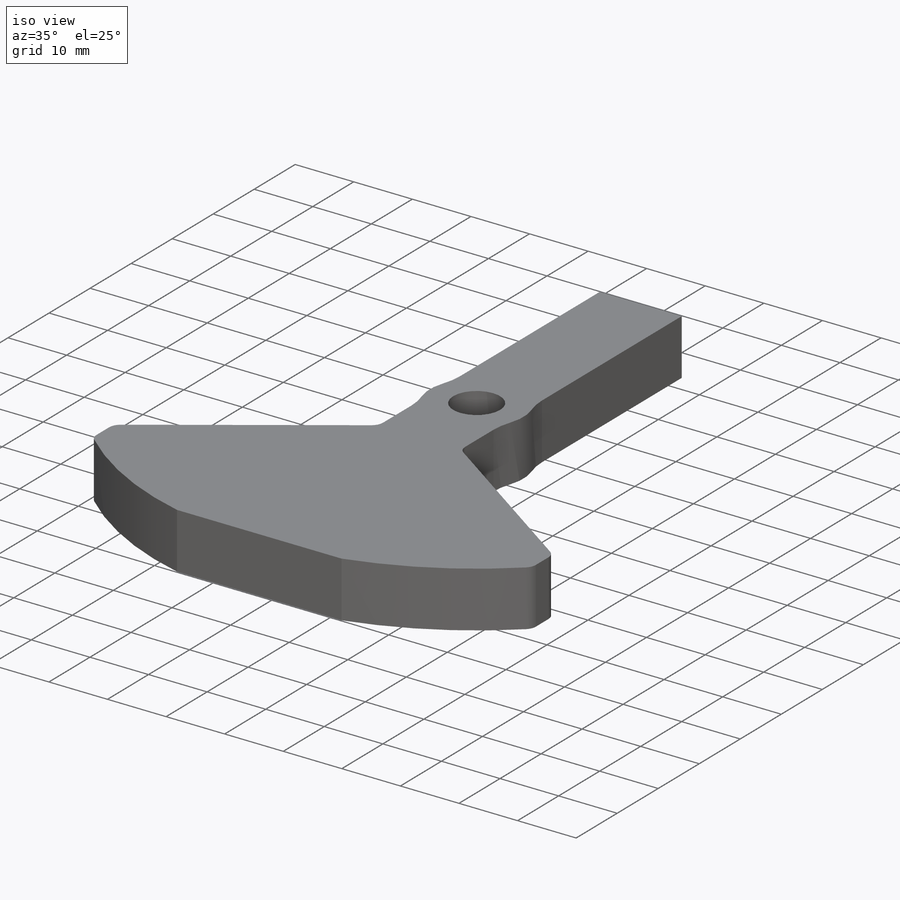
[diagram: iso view]
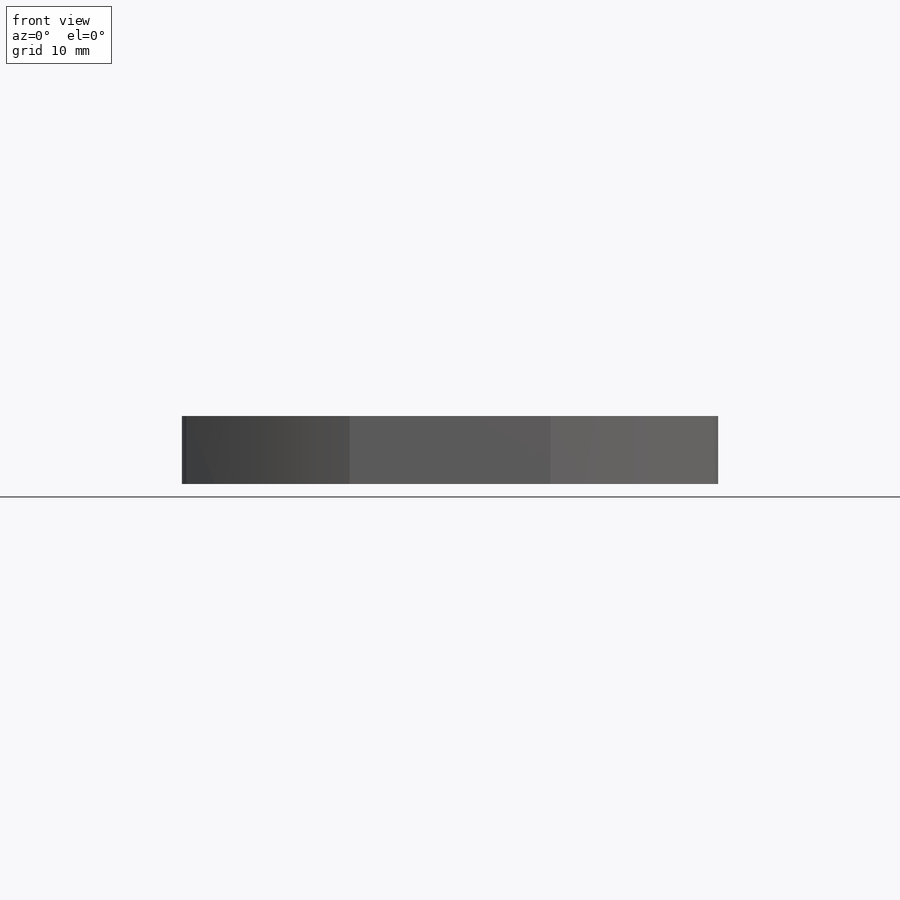
[diagram: front view]
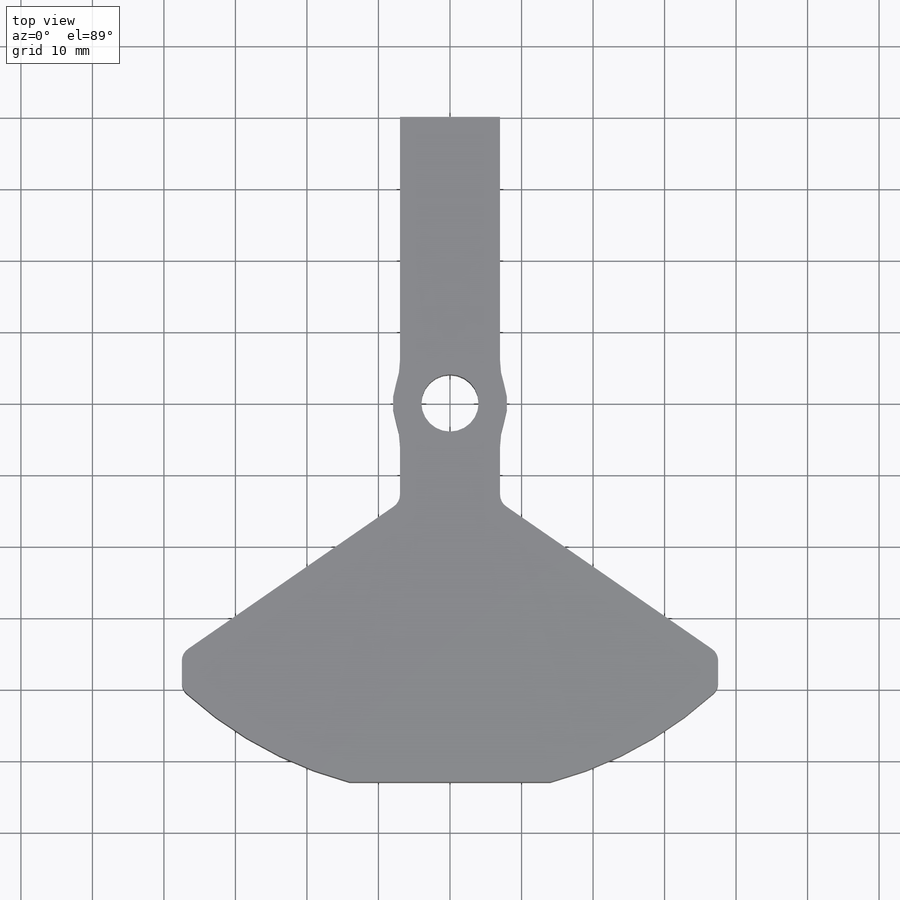
[diagram: top view]
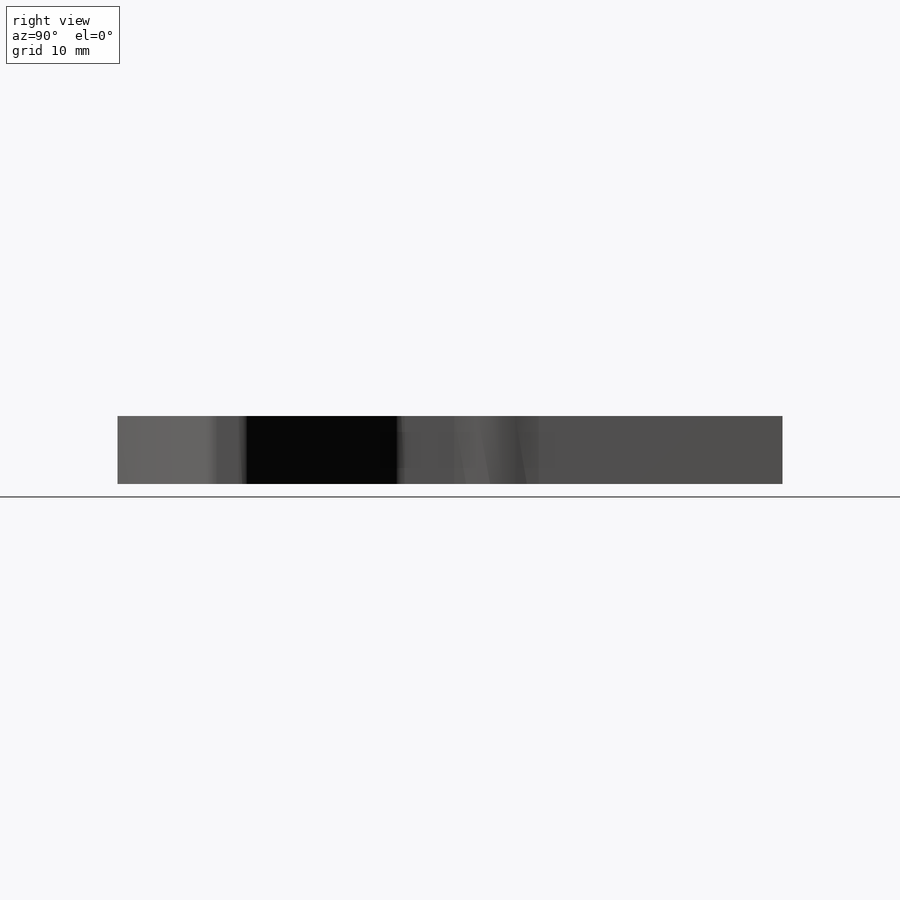
[diagram: right view]
SOLIDWORKS PART (.sldprt)
format: sldprt  version: not decoded by parser v0  size: 218,624 bytes
history: native  units: mm
features: sketch x3, fillet x2, material x1, extrude x1, hole x1 (+12 scaffold rows collapsed)
feature tree (20):
  scaffold x12  (default folders/planes/origin — collapsed)
  material  "AISI 1020 Steel, Cold Rolled"
  sketch  "Sketch1"  dims[c1.D1=8.0mm c1.D4=8.0mm c1.D10=10.0mm c1.D2=14.0mm c1.D3=7.0mm c1.D5=40.0mm c1.D6=100.0mm c1.D7=75.0mm c2.D6=40.0mm c2.D8=10.0mm c2.D9=5.0mm c2.D10=53.0mm]
  extrude  "Boss-Extrude1"  Depth=9.525mm
  fillet  "Fillet1"  Radius=10mm
  hole  "M8x1.25 Tapped Hole1"  Diameter=6.8mm Depth=32.25mm
  sketch  "Sketch3"  dims[D1=0.0mm]
  sketch  "Sketch2"  dims[hole-wizard template sketch: 47 standard entries collapsed; hole parameters kept: c15.Tap Drill Depth=32.25mm c15.D3=~14.816244mm c15.Drill Angle=118.0deg]
  fillet  "Fillet2"  Radius=2mm
decode coverage: 7 of 7 modeling features carry decoded parameters
note: ~ marks probable driven/reference dimensions
note: suppression state not decoded; provenance and decode notes live in map.json
